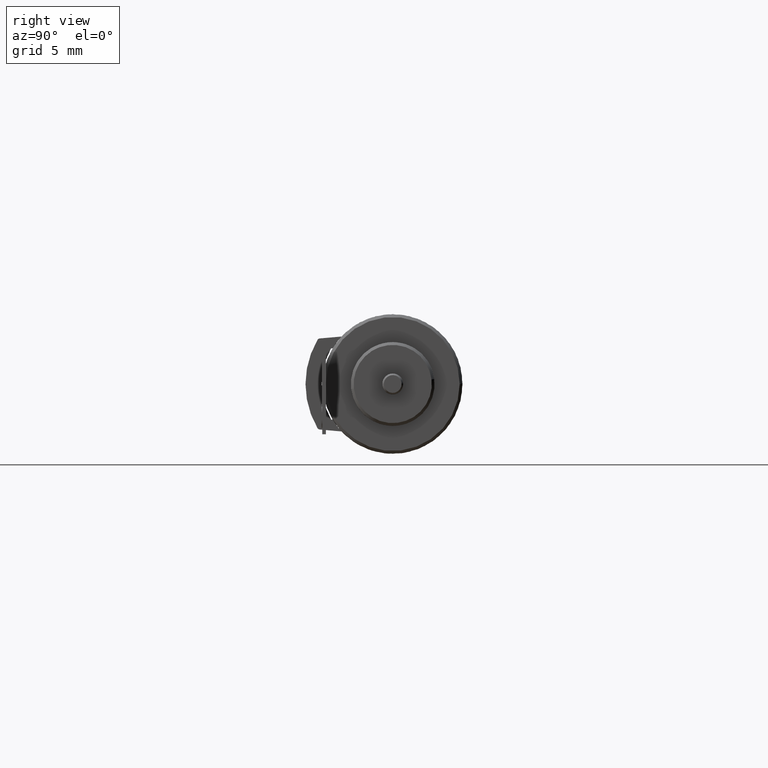
[diagram: clean part render]
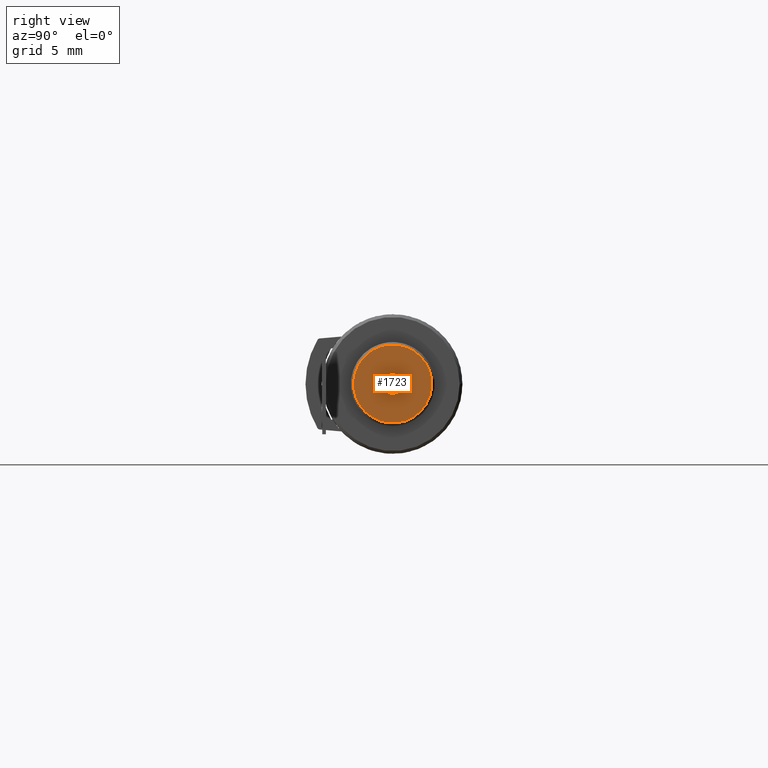
[diagram: same view with one face highlighted and labeled with its STEP entity id]
A machine part, right view. The second image highlights one B-rep face of the part: STEP entity #1723.
In plain terms, the highlighted planar face has unit normal (-1, 0, 0).
Its self-contained STEP definition (entity closure, byte-faithful):
#1580=CARTESIAN_POINT('',(0.E0,0.E0,-2.167155344068E-13));
#1581=DIRECTION('',(0.E0,0.E0,1.E0));
#1582=DIRECTION('',(-1.E0,0.E0,0.E0));
#1583=AXIS2_PLACEMENT_3D('',#1580,#1581,#1582);
#1585=CARTESIAN_POINT('',(0.E0,0.E0,-2.167155344068E-13));
#1586=DIRECTION('',(0.E0,0.E0,1.E0));
#1587=DIRECTION('',(0.E0,-1.E0,0.E0));
#1588=AXIS2_PLACEMENT_3D('',#1585,#1586,#1587);
#1590=CARTESIAN_POINT('',(0.E0,0.E0,-2.167155344068E-13));
#1591=DIRECTION('',(0.E0,0.E0,1.E0));
#1592=DIRECTION('',(1.E0,0.E0,0.E0));
#1593=AXIS2_PLACEMENT_3D('',#1590,#1591,#1592);
#1595=CARTESIAN_POINT('',(0.E0,0.E0,-2.167155344068E-13));
#1596=DIRECTION('',(0.E0,0.E0,1.E0));
#1597=DIRECTION('',(0.E0,1.E0,0.E0));
#1598=AXIS2_PLACEMENT_3D('',#1595,#1596,#1597);
#1600=CARTESIAN_POINT('',(0.E0,0.E0,0.E0));
#1601=DIRECTION('',(0.E0,0.E0,-1.E0));
#1602=DIRECTION('',(1.E0,0.E0,0.E0));
#1603=AXIS2_PLACEMENT_3D('',#1600,#1601,#1602);
#1605=CARTESIAN_POINT('',(0.E0,0.E0,0.E0));
#1606=DIRECTION('',(0.E0,0.E0,-1.E0));
#1607=DIRECTION('',(-1.E0,0.E0,0.E0));
#1608=AXIS2_PLACEMENT_3D('',#1605,#1606,#1607);
#1674=CARTESIAN_POINT('',(-2.8E0,0.E0,-2.167155344068E-13));
#1675=CARTESIAN_POINT('',(0.E0,-2.8E0,-2.167155344068E-13));
#1676=VERTEX_POINT('',#1674);
#1677=VERTEX_POINT('',#1675);
#1678=CARTESIAN_POINT('',(2.8E0,0.E0,-2.167155344068E-13));
#1679=VERTEX_POINT('',#1678);
#1680=CARTESIAN_POINT('',(0.E0,2.8E0,-2.167155344068E-13));
#1681=VERTEX_POINT('',#1680);
#1682=CARTESIAN_POINT('',(7.5E-1,0.E0,0.E0));
#1683=CARTESIAN_POINT('',(-7.5E-1,0.E0,0.E0));
#1684=VERTEX_POINT('',#1682);
#1685=VERTEX_POINT('',#1683);
#1702=CARTESIAN_POINT('',(0.E0,0.E0,0.E0));
#1703=DIRECTION('',(0.E0,0.E0,1.E0));
#1704=DIRECTION('',(1.E0,0.E0,0.E0));
#1705=AXIS2_PLACEMENT_3D('',#1702,#1703,#1704);
#1706=PLANE('',#1705);
#1708=ORIENTED_EDGE('',*,*,#1707,.T.);
#1710=ORIENTED_EDGE('',*,*,#1709,.T.);
#1712=ORIENTED_EDGE('',*,*,#1711,.T.);
#1714=ORIENTED_EDGE('',*,*,#1713,.T.);
#1715=EDGE_LOOP('',(#1708,#1710,#1712,#1714));
#1716=FACE_OUTER_BOUND('',#1715,.F.);
#1718=ORIENTED_EDGE('',*,*,#1717,.T.);
#1720=ORIENTED_EDGE('',*,*,#1719,.T.);
#1721=EDGE_LOOP('',(#1718,#1720));
#1722=FACE_BOUND('',#1721,.F.);
#1723=ADVANCED_FACE('',(#1716,#1722),#1706,.F.);
#1584=CIRCLE('',#1583,2.8E0);
#1589=CIRCLE('',#1588,2.8E0);
#1594=CIRCLE('',#1593,2.8E0);
#1599=CIRCLE('',#1598,2.8E0);
#1604=CIRCLE('',#1603,7.5E-1);
#1609=CIRCLE('',#1608,7.5E-1);
#1707=EDGE_CURVE('',#1676,#1677,#1584,.T.);
#1709=EDGE_CURVE('',#1677,#1679,#1589,.T.);
#1711=EDGE_CURVE('',#1679,#1681,#1594,.T.);
#1713=EDGE_CURVE('',#1681,#1676,#1599,.T.);
#1717=EDGE_CURVE('',#1684,#1685,#1604,.T.);
#1719=EDGE_CURVE('',#1685,#1684,#1609,.T.);